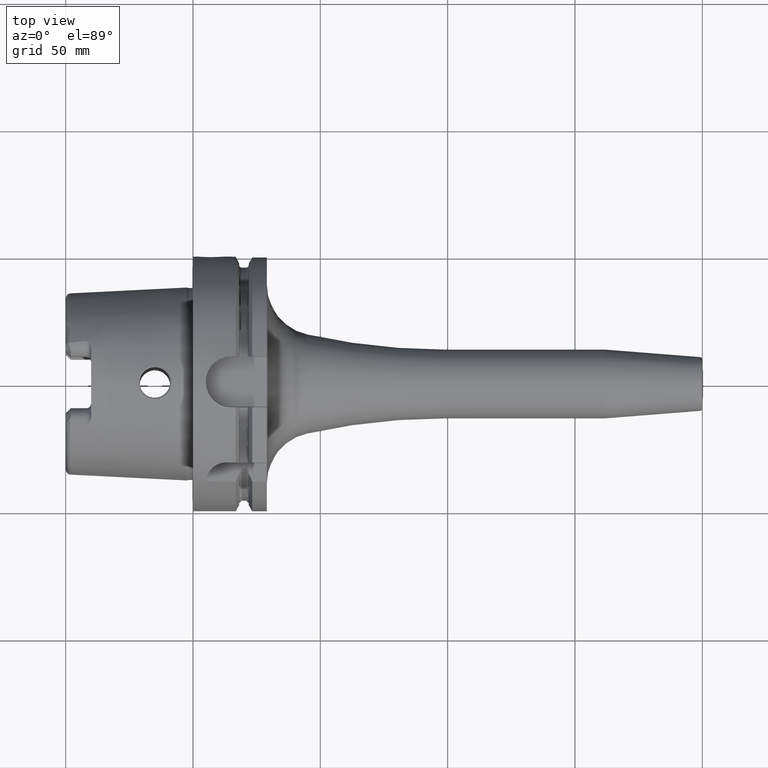
[diagram: clean part render]
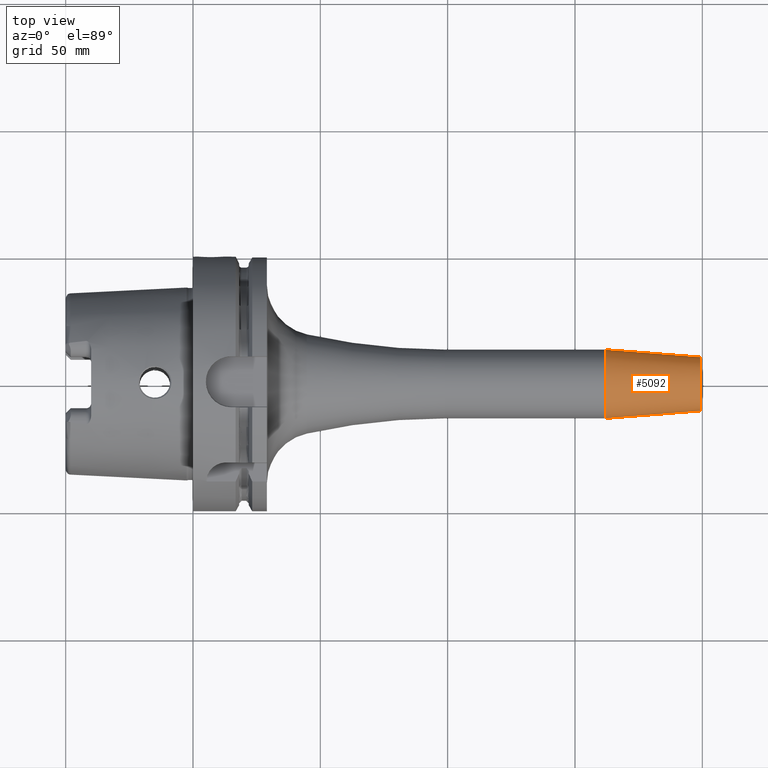
[diagram: same view with one face highlighted and labeled with its STEP entity id]
A machine part, top view. The second image highlights one B-rep face of the part: STEP entity #5092.
In plain terms, the highlighted conical surface has half-angle 4.5 deg.
Its self-contained STEP definition (entity closure, byte-faithful):
#1863=CARTESIAN_POINT('',(1.618813857915E2,0.E0,0.E0));
#1864=DIRECTION('',(1.E0,0.E0,0.E0));
#1865=DIRECTION('',(0.E0,1.E0,0.E0));
#1866=AXIS2_PLACEMENT_3D('',#1863,#1864,#1865);
#1868=CARTESIAN_POINT('',(1.990784590957E2,0.E0,0.E0));
#1869=DIRECTION('',(-1.E0,0.E0,0.E0));
#1870=DIRECTION('',(0.E0,-1.E0,0.E0));
#1871=AXIS2_PLACEMENT_3D('',#1868,#1869,#1870);
#1888=DIRECTION('',(-9.969173337331E-1,7.845909572785E-2,0.E0));
#1889=VECTOR('',#1888,3.731209403789E1);
#1890=CARTESIAN_POINT('',(1.990784590957E2,1.057252684207E1,
-2.593217489990E-13));
#1891=LINE('',#1890,#1889);
#1892=DIRECTION('',(-9.969173337331E-1,-7.845909572785E-2,0.E0));
#1893=VECTOR('',#1892,3.731209403789E1);
#1894=CARTESIAN_POINT('',(1.990784590957E2,-1.057252684207E1,
2.589945892732E-13));
#1895=LINE('',#1894,#1893);
#3149=CARTESIAN_POINT('',(1.618813857915E2,1.35E1,0.E0));
#3150=CARTESIAN_POINT('',(1.618813857915E2,-1.35E1,0.E0));
#3151=VERTEX_POINT('',#3149);
#3152=VERTEX_POINT('',#3150);
#3157=CARTESIAN_POINT('',(1.990784590957E2,1.057252684207E1,0.E0));
#3158=CARTESIAN_POINT('',(1.990784590957E2,-1.057252684207E1,0.E0));
#3159=VERTEX_POINT('',#3157);
#3160=VERTEX_POINT('',#3158);
#5078=CARTESIAN_POINT('',(1.804799224436E2,0.E0,0.E0));
#5079=DIRECTION('',(-1.E0,0.E0,0.E0));
#5080=DIRECTION('',(0.E0,1.E0,0.E0));
#5081=AXIS2_PLACEMENT_3D('',#5078,#5079,#5080);
#5082=CONICAL_SURFACE('',#5081,1.203626342104E1,4.5E0);
#5084=ORIENTED_EDGE('',*,*,#5083,.F.);
#5086=ORIENTED_EDGE('',*,*,#5085,.T.);
#5087=ORIENTED_EDGE('',*,*,#5072,.F.);
#5089=ORIENTED_EDGE('',*,*,#5088,.F.);
#5090=EDGE_LOOP('',(#5084,#5086,#5087,#5089));
#5091=FACE_OUTER_BOUND('',#5090,.F.);
#5092=ADVANCED_FACE('',(#5091),#5082,.T.);
#1867=CIRCLE('',#1866,1.35E1);
#1872=CIRCLE('',#1871,1.057252684207E1);
#5072=EDGE_CURVE('',#3151,#3152,#1867,.T.);
#5083=EDGE_CURVE('',#3160,#3159,#1872,.T.);
#5085=EDGE_CURVE('',#3160,#3152,#1895,.T.);
#5088=EDGE_CURVE('',#3159,#3151,#1891,.T.);